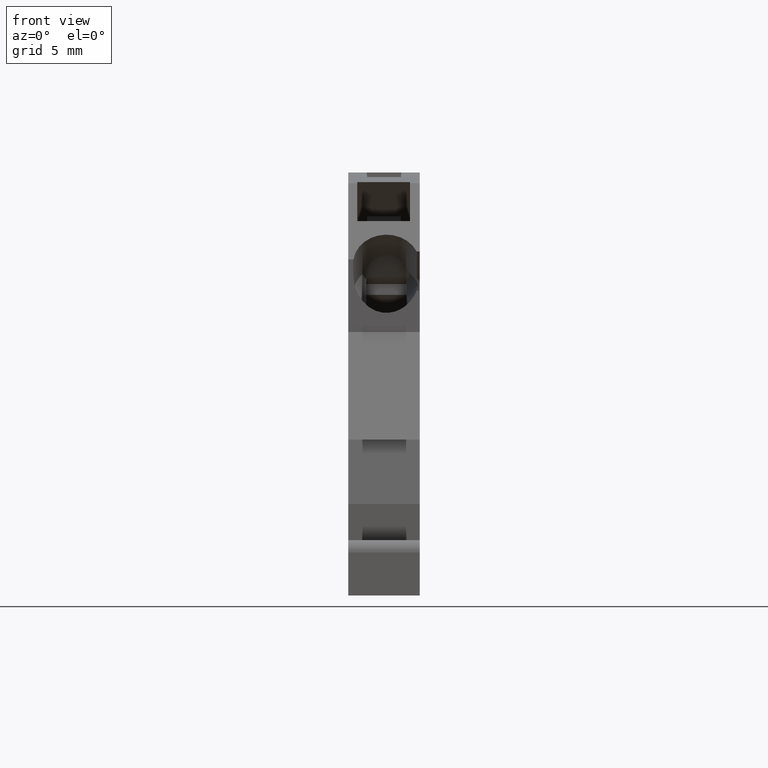
[diagram: clean part render]
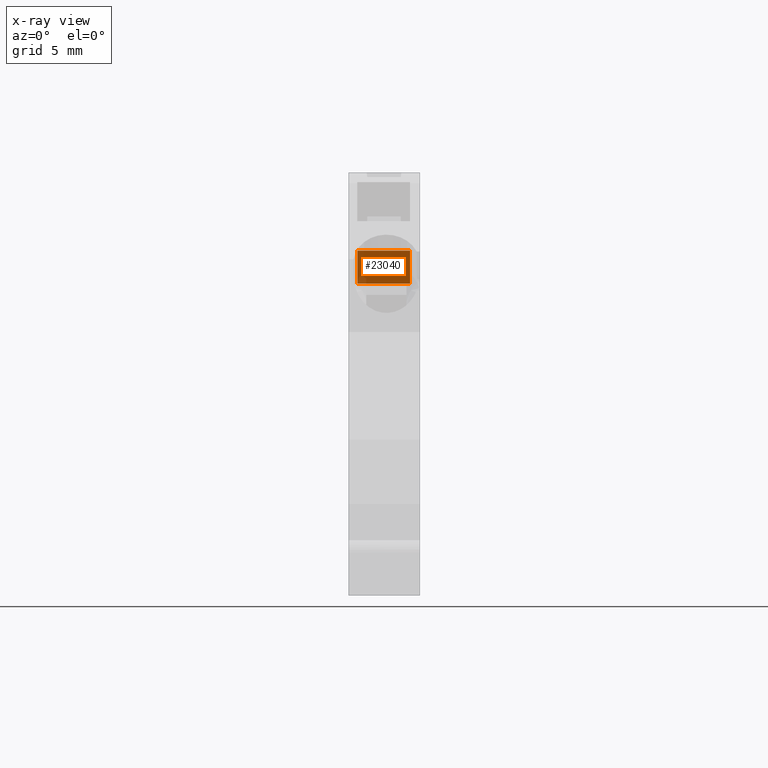
[diagram: x-ray — body ghosted, one internal face saturated and labeled with its STEP entity id]
A machine part, front view, then the same camera in x-ray: the body is ghosted and one INTERNAL B-rep face — a face not visible from any outside direction — is saturated and labeled: STEP entity #23040.
In plain terms, the highlighted planar face has unit normal (0, -0.766, -0.6428).
Its self-contained STEP definition (entity closure, byte-faithful):
#19010=CARTESIAN_POINT('',(67.6700746857311,124.603940509807,
9.92499999999778));
#19020=VERTEX_POINT('',#19010);
#19050=CARTESIAN_POINT('',(67.6700746857328,124.603940509809,
11.6905672245108));
#19060=DIRECTION('',(5.25517629365787E-13,-3.14579055733561E-13,-1.));
#19070=VECTOR('',#19060,1.);
#19080=LINE('',#19050,#19070);
#19090=CARTESIAN_POINT('',(67.6700746857285,124.603940509808,
13.7249999999978));
#19100=VERTEX_POINT('',#19090);
#19110=EDGE_CURVE('',#19100,#19020,#19080,.T.);
#20120=CARTESIAN_POINT('',(59.0012582464742,131.877941186716,
13.7249999999936));
#20130=DIRECTION('',(-0.766044443119791,0.64278760968557,
-6.04841644449783E-13));
#20140=VECTOR('',#20130,1.);
#20150=LINE('',#20120,#20140);
#20160=CARTESIAN_POINT('',(70.0496761543627,122.607217795138,
13.724999999999));
#20170=VERTEX_POINT('',#20160);
#20180=EDGE_CURVE('',#20170,#19100,#20150,.T.);
#21320=CARTESIAN_POINT('',(70.0496761543647,122.607217795137,
9.92499999999902));
#21330=VERTEX_POINT('',#21320);
#21360=CARTESIAN_POINT('',(59.0012582464762,131.877941186715,
9.9249999999936));
#21370=DIRECTION('',(0.766044443119791,-0.64278760968557,
6.04841644449783E-13));
#21380=VECTOR('',#21370,1.);
#21390=LINE('',#21360,#21380);
#21400=EDGE_CURVE('',#19020,#21330,#21390,.T.);
#22880=CARTESIAN_POINT('',(66.9981454516839,125.167756082276,
9.22499999999991));
#22890=DIRECTION('',(0.64278760968557,0.766044443119791,
9.68159756298282E-14));
#22900=DIRECTION('',(-0.766044443119791,0.64278760968557,
-6.0478470056518E-13));
#22910=AXIS2_PLACEMENT_3D('',#22880,#22890,#22900);
#22920=PLANE('',#22910);
#22930=ORIENTED_EDGE('',*,*,#19110,.F.);
#22940=ORIENTED_EDGE('',*,*,#21400,.F.);
#22950=CARTESIAN_POINT('',(70.0496761543623,122.607217795138,
14.374999999999));
#22960=DIRECTION('',(-5.25524337507278E-13,3.14584684532612E-13,1.));
#22970=VECTOR('',#22960,1.);
#22980=LINE('',#22950,#22970);
#22990=EDGE_CURVE('',#21330,#20170,#22980,.T.);
#23000=ORIENTED_EDGE('',*,*,#22990,.F.);
#23010=ORIENTED_EDGE('',*,*,#20180,.F.);
#23020=EDGE_LOOP('',(#23010,#23000,#22940,#22930));
#23030=FACE_OUTER_BOUND('',#23020,.T.);
#23040=ADVANCED_FACE('',(#23030),#22920,.T.);